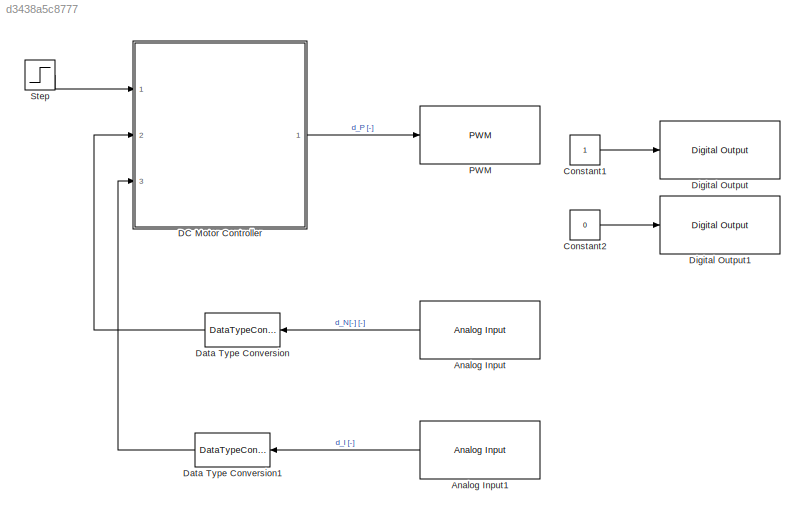
MODEL slx_d3438a5c8777
KIND model
CONFIG AbsTol = auto
CONFIG EnableMultiTasking = on
CONFIG FixedStep = 0.05
CONFIG MaxStep = auto
CONFIG MinStep = auto
CONFIG RelTol = 1e-3
CONFIG SampleTimeConstraint = Unconstrained
CONFIG SolverName = ode1
CONFIG StartTime = 0.0
CONFIG StopTime = Endtime
BLOCK [Reference] Analog Input   REF=arduinolib/Analog Input
  Ports = [0, 1]
  SourceBlock = arduinolib/Analog Input
  SourceProductBaseCode = ARDUINO
  SourceType = Arduino Analog Input
BLOCK [Reference] Analog Input1   REF=arduinolib/Analog Input
  Ports = [0, 1]
  SourceBlock = arduinolib/Analog Input
  SourceProductBaseCode = ARDUINO
  SourceType = Arduino Analog Input
BLOCK [Constant] Constant1
BLOCK [Constant] Constant2
  Value = 0
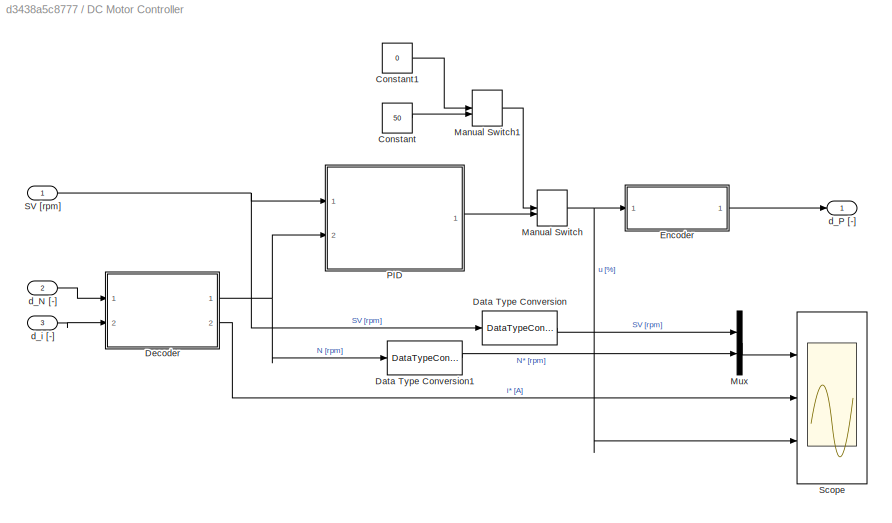
BLOCK [SubSystem] DC Motor Controller
  Ports = [3, 1]
  RequestExecContextInheritance = off
BLOCK [Constant] DC Motor Controller/Constant
  Value = 50
BLOCK [Constant] DC Motor Controller/Constant1
  Value = 0
BLOCK [DataTypeConversion] DC Motor Controller/Data Type Conversion
  RndMeth = Floor
  SaturateOnIntegerOverflow = off
BLOCK [DataTypeConversion] DC Motor Controller/Data Type Conversion1
  RndMeth = Floor
  SaturateOnIntegerOverflow = off
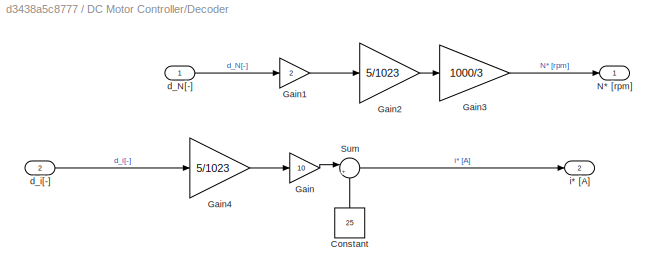
BLOCK [SubSystem] DC Motor Controller/Decoder
  Ports = [2, 2]
  RequestExecContextInheritance = off
BLOCK [Constant] DC Motor Controller/Decoder/Constant
  NameLocation = right
  Value = 25
BLOCK [Gain] DC Motor Controller/Decoder/Gain
  Gain = 10
BLOCK [Gain] DC Motor Controller/Decoder/Gain1
  Gain = 2
BLOCK [Gain] DC Motor Controller/Decoder/Gain2
  Gain = 5/1023
BLOCK [Gain] DC Motor Controller/Decoder/Gain3
  Gain = 1000/3
BLOCK [Gain] DC Motor Controller/Decoder/Gain4
  Gain = 5/1023
BLOCK [Outport] DC Motor Controller/Decoder/N* [rpm]
BLOCK [Sum] DC Motor Controller/Decoder/Sum
  Inputs = |+-
  Ports = [2, 1]
BLOCK [Inport] DC Motor Controller/Decoder/d_N[-]
BLOCK [Inport] DC Motor Controller/Decoder/d_i[-]
  Port = 2
BLOCK [Outport] DC Motor Controller/Decoder/i* [A]
  Port = 2
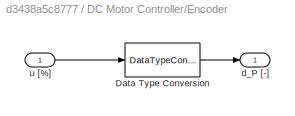
BLOCK [SubSystem] DC Motor Controller/Encoder
  Ports = [1, 1]
  RequestExecContextInheritance = off
BLOCK [DataTypeConversion] DC Motor Controller/Encoder/Data Type Conversion
  RndMeth = Floor
  SaturateOnIntegerOverflow = off
BLOCK [Outport] DC Motor Controller/Encoder/d_P [-]
BLOCK [Inport] DC Motor Controller/Encoder/u [%]
BLOCK [ManualSwitch] DC Motor Controller/Manual Switch
  CurrentSetting = 0
BLOCK [ManualSwitch] DC Motor Controller/Manual Switch1
BLOCK [Mux] DC Motor Controller/Mux
  DisplayOption = bar
  Inputs = 2
  Ports = [2, 1]
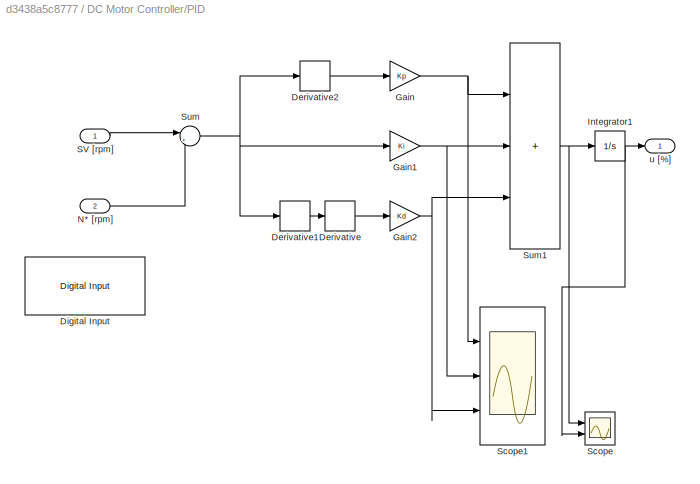
BLOCK [SubSystem] DC Motor Controller/PID
  Ports = [2, 1]
  RequestExecContextInheritance = off
BLOCK [Derivative] DC Motor Controller/PID/Derivative
BLOCK [Derivative] DC Motor Controller/PID/Derivative1
BLOCK [Derivative] DC Motor Controller/PID/Derivative2
BLOCK [Reference] DC Motor Controller/PID/Digital Input  REF=arduinolib/Digital Input
  Commented = on
  Ports = [0, 1]
  SourceBlock = arduinolib/Digital Input
  SourceProductBaseCode = ARDUINO
  SourceType = Arduino Digital Input
BLOCK [Gain] DC Motor Controller/PID/Gain
  Gain = Kp
BLOCK [Gain] DC Motor Controller/PID/Gain1
  Gain = Ki
BLOCK [Gain] DC Motor Controller/PID/Gain2
  Gain = Kd
BLOCK [Integrator] DC Motor Controller/PID/Integrator1
  Ports = [1, 1]
BLOCK [Inport] DC Motor Controller/PID/N* [rpm]
  Port = 2
BLOCK [Inport] DC Motor Controller/PID/SV [rpm]
BLOCK [Scope] DC Motor Controller/PID/Scope
  Floating = off
  NumInputPorts = 2
  Ports = [2]
  ScopeSpecificationString = Simulink.scopes.TimeScopeBlockCfg('CurrentConfiguration', extmgr.ConfigurationSet(extmgr.Configuration('Core','General UI',true),extmgr.Configuration('Core','Source UI',true),extmgr.Configuration('Sources','WiredSimulink',true,'DataLoggingVariableName','ScopeData1'),extmgr.Configuration('Visuals','Time Domain',true,'SerializedDisplays',{struct('MinYLimReal','-58.27631','MaxYLimReal','217.87227','Y...<+2059ch>
BLOCK [Scope] DC Motor Controller/PID/Scope1
  Floating = off
  NumInputPorts = 3
  Ports = [3]
  ScopeSpecificationString = Simulink.scopes.TimeScopeBlockCfg('CurrentConfiguration', extmgr.ConfigurationSet(extmgr.Configuration('Core','General UI',true),extmgr.Configuration('Core','Source UI',true),extmgr.Configuration('Sources','WiredSimulink',true,'DataLoggingVariableName','ScopeData2'),extmgr.Configuration('Visuals','Time Domain',true,'SerializedDisplays',{struct('MinYLimReal','-52.13425','MaxYLimReal','208.53698','Y...<+2749ch>
BLOCK [Sum] DC Motor Controller/PID/Sum
  Inputs = |+-
  Ports = [2, 1]
BLOCK [Sum] DC Motor Controller/PID/Sum1
  IconShape = rectangular
  Inputs = +++
  Ports = [3, 1]
BLOCK [Outport] DC Motor Controller/PID/u [%]
BLOCK [Inport] DC Motor Controller/SV [rpm]
BLOCK [Scope] DC Motor Controller/Scope
  Floating = off
  NumInputPorts = 3
  Ports = [3]
  ScopeSpecificationString = Simulink.scopes.TimeScopeBlockCfg('CurrentConfiguration', extmgr.ConfigurationSet(extmgr.Configuration('Core','General UI',true),extmgr.Configuration('Core','Source UI',true),extmgr.Configuration('Sources','WiredSimulink',true),extmgr.Configuration('Visuals','Time Domain',true,'SerializedDisplays',{struct('MinYLimReal','-500','MaxYLimReal','4000','YLabelReal','','MinYLimMag',' 0.00000','MaxYLimMag...<+2758ch>
BLOCK [Inport] DC Motor Controller/d_N [-]
  Port = 2
BLOCK [Outport] DC Motor Controller/d_P [-]
BLOCK [Inport] DC Motor Controller/d_i [-]
  Port = 3
BLOCK [DataTypeConversion] Data Type Conversion 
  RndMeth = Floor
  SaturateOnIntegerOverflow = off
BLOCK [DataTypeConversion] Data Type Conversion1 
  RndMeth = Floor
  SaturateOnIntegerOverflow = off
BLOCK [Reference] Digital Output  REF=arduinolib/Digital Output
  Ports = [1]
  SourceBlock = arduinolib/Digital Output
  SourceProductBaseCode = ARDUINO
  SourceType = Arduino Digital Output
BLOCK [Reference] Digital Output1  REF=arduinolib/Digital Output
  Ports = [1]
  SourceBlock = arduinolib/Digital Output
  SourceProductBaseCode = ARDUINO
  SourceType = Arduino Digital Output
BLOCK [Reference] PWM   REF=arduinolib/PWM
  Ports = [1]
  SourceBlock = arduinolib/PWM
  SourceProductBaseCode = ARDUINO
  SourceType = Arduino PWM
BLOCK [Step] Step
  After = SV
  SampleTime = 0
LINE Analog Input :1 -> Data Type Conversion :1
LINE Analog Input1 :1 -> Data Type Conversion1 :1
LINE Constant1:1 -> Digital Output:1
LINE Constant2:1 -> Digital Output1:1
LINE DC Motor Controller/Constant1:1 -> DC Motor Controller/Manual Switch1:1
LINE DC Motor Controller/Constant:1 -> DC Motor Controller/Manual Switch1:2
LINE DC Motor Controller/Data Type Conversion1:1 -> DC Motor Controller/Mux:2
LINE DC Motor Controller/Data Type Conversion:1 -> DC Motor Controller/Mux:1
LINE DC Motor Controller/Decoder/Constant:1 -> DC Motor Controller/Decoder/Sum:2
LINE DC Motor Controller/Decoder/Gain1:1 -> DC Motor Controller/Decoder/Gain2:1
LINE DC Motor Controller/Decoder/Gain2:1 -> DC Motor Controller/Decoder/Gain3:1
LINE DC Motor Controller/Decoder/Gain3:1 -> DC Motor Controller/Decoder/N* [rpm]:1
LINE DC Motor Controller/Decoder/Gain4:1 -> DC Motor Controller/Decoder/Gain:1
LINE DC Motor Controller/Decoder/Gain:1 -> DC Motor Controller/Decoder/Sum:1
LINE DC Motor Controller/Decoder/Sum:1 -> DC Motor Controller/Decoder/i* [A]:1
LINE DC Motor Controller/Decoder/d_N[-]:1 -> DC Motor Controller/Decoder/Gain1:1
LINE DC Motor Controller/Decoder/d_i[-]:1 -> DC Motor Controller/Decoder/Gain4:1
NET DC Motor Controller/Decoder:1 -> DC Motor Controller/Data Type Conversion1:1, DC Motor Controller/PID:2
LINE DC Motor Controller/Decoder:2 -> DC Motor Controller/Scope:2
LINE DC Motor Controller/Encoder/Data Type Conversion:1 -> DC Motor Controller/Encoder/d_P [-]:1
LINE DC Motor Controller/Encoder/u [%]:1 -> DC Motor Controller/Encoder/Data Type Conversion:1
LINE DC Motor Controller/Encoder:1 -> DC Motor Controller/d_P [-]:1
LINE DC Motor Controller/Manual Switch1:1 -> DC Motor Controller/Manual Switch:1
NET DC Motor Controller/Manual Switch:1 -> DC Motor Controller/Encoder:1, DC Motor Controller/Scope:3
LINE DC Motor Controller/Mux:1 -> DC Motor Controller/Scope:1
LINE DC Motor Controller/PID/Derivative1:1 -> DC Motor Controller/PID/Derivative:1
LINE DC Motor Controller/PID/Derivative2:1 -> DC Motor Controller/PID/Gain:1
LINE DC Motor Controller/PID/Derivative:1 -> DC Motor Controller/PID/Gain2:1
NET DC Motor Controller/PID/Gain1:1 -> DC Motor Controller/PID/Scope1:2, DC Motor Controller/PID/Sum1:2
NET DC Motor Controller/PID/Gain2:1 -> DC Motor Controller/PID/Scope1:3, DC Motor Controller/PID/Sum1:3
NET DC Motor Controller/PID/Gain:1 -> DC Motor Controller/PID/Scope1:1, DC Motor Controller/PID/Sum1:1
NET DC Motor Controller/PID/Integrator1:1 -> DC Motor Controller/PID/Scope:2, DC Motor Controller/PID/u [%]:1
LINE DC Motor Controller/PID/N* [rpm]:1 -> DC Motor Controller/PID/Sum:2
LINE DC Motor Controller/PID/SV [rpm]:1 -> DC Motor Controller/PID/Sum:1
NET DC Motor Controller/PID/Sum1:1 -> DC Motor Controller/PID/Integrator1:1, DC Motor Controller/PID/Scope:1
NET DC Motor Controller/PID/Sum:1 -> DC Motor Controller/PID/Derivative1:1, DC Motor Controller/PID/Derivative2:1, DC Motor Controller/PID/Gain1:1
LINE DC Motor Controller/PID:1 -> DC Motor Controller/Manual Switch:2
NET DC Motor Controller/SV [rpm]:1 -> DC Motor Controller/Data Type Conversion:1, DC Motor Controller/PID:1
LINE DC Motor Controller/d_N [-]:1 -> DC Motor Controller/Decoder:1
LINE DC Motor Controller/d_i [-]:1 -> DC Motor Controller/Decoder:2
LINE DC Motor Controller:1 -> PWM :1
LINE Data Type Conversion :1 -> DC Motor Controller:2
LINE Data Type Conversion1 :1 -> DC Motor Controller:3
LINE Step:1 -> DC Motor Controller:1
note: NET lines group one-source signal fan-out (src -> all destinations, sorted); 1:1 wires keep LINE
